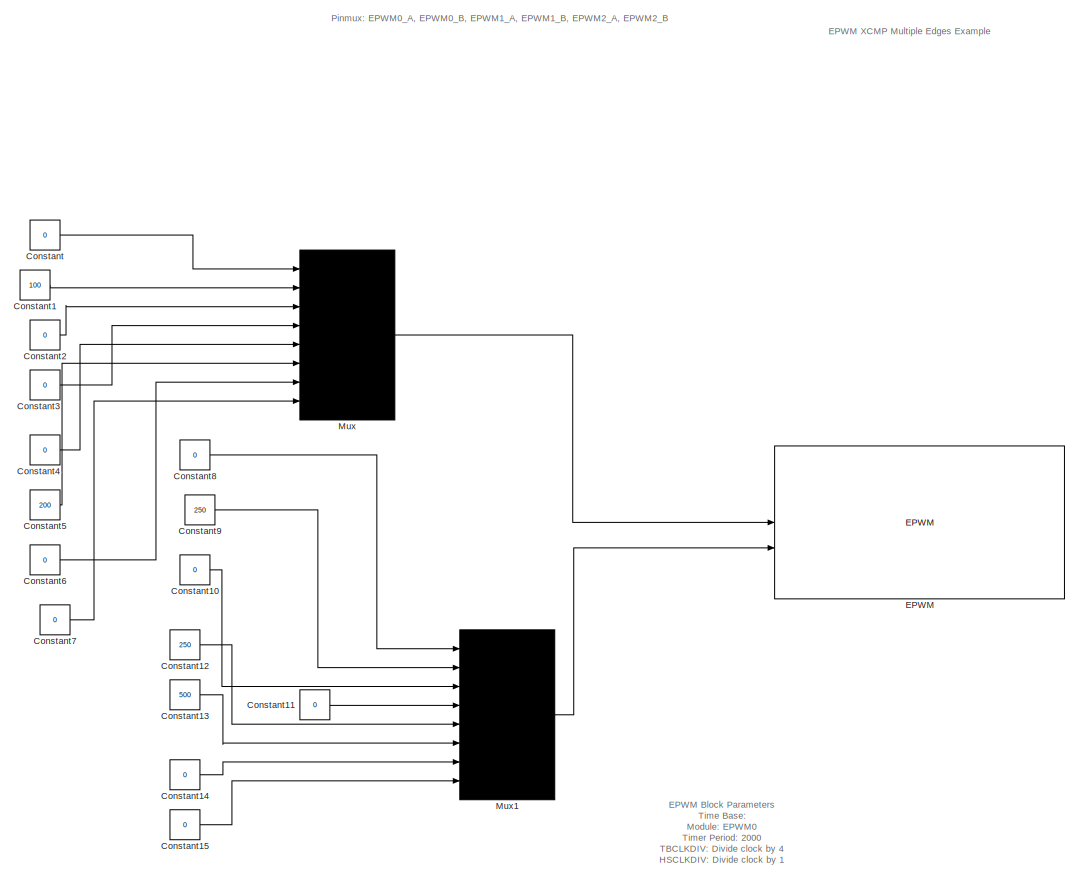
[diagram: root canvas - part 1/3, center side, full height]
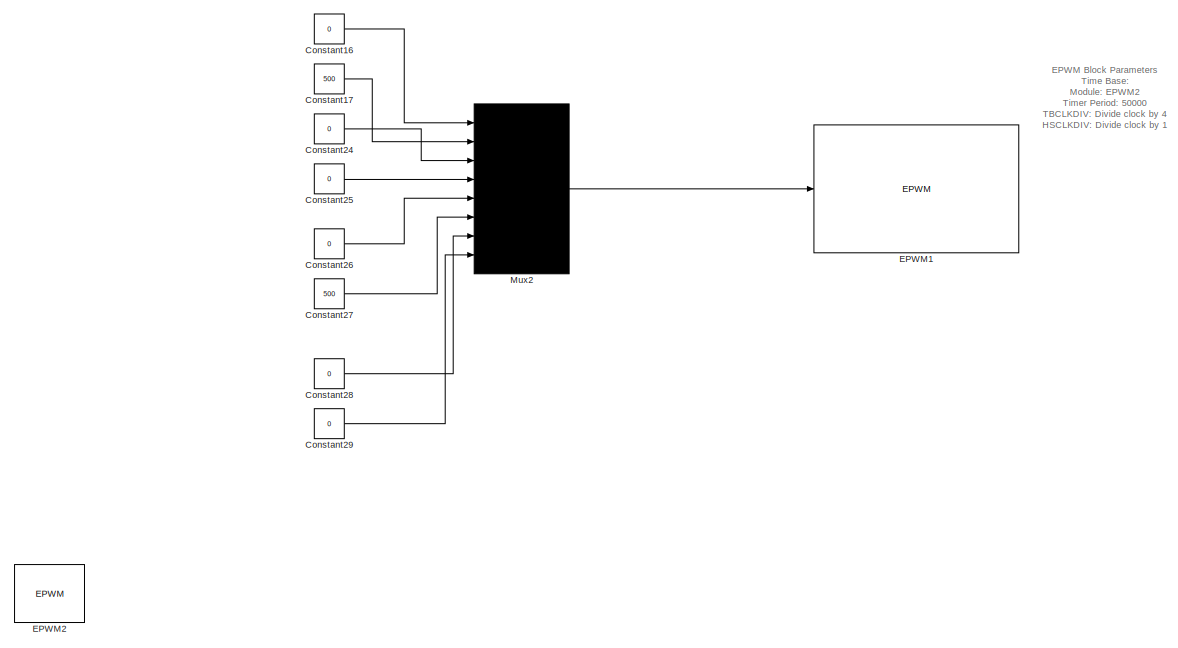
[diagram: root canvas - part 2/3, middle right region]
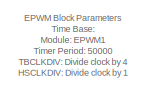
[diagram: root canvas - part 3/3, middle left region]
MODEL slx_47c0617c7b79
KIND model
CONFIG AbsTol = auto
CONFIG EnableMultiTasking = off
CONFIG FixedStep = auto
CONFIG MaxStep = auto
CONFIG MinStep = auto
CONFIG RelTol = 1e-3
CONFIG SampleTimeConstraint = Unconstrained
CONFIG SolverName = FixedStepAuto
CONFIG StartTime = 0.0
CONFIG StopTime = 10.0
BLOCK [Constant] Constant
  Value = 0
BLOCK [Constant] Constant1
  Value = 100
BLOCK [Constant] Constant10
  Value = 0
BLOCK [Constant] Constant11
  Value = 0
BLOCK [Constant] Constant12
  Value = 250
BLOCK [Constant] Constant13
  Value = 500
BLOCK [Constant] Constant14
  Value = 0
BLOCK [Constant] Constant15
  Value = 0
BLOCK [Constant] Constant16
  Value = 0
BLOCK [Constant] Constant17
  Value = 500
BLOCK [Constant] Constant2
  Value = 0
BLOCK [Constant] Constant24
  Value = 0
BLOCK [Constant] Constant25
  Value = 0
BLOCK [Constant] Constant26
  Value = 0
BLOCK [Constant] Constant27
  Value = 500
BLOCK [Constant] Constant28
  Value = 0
BLOCK [Constant] Constant29
  Value = 0
BLOCK [Constant] Constant3
  Value = 0
BLOCK [Constant] Constant4
  Value = 0
BLOCK [Constant] Constant5
  Value = 200
BLOCK [Constant] Constant6
  Value = 0
BLOCK [Constant] Constant7
  Value = 0
BLOCK [Constant] Constant8
  Value = 0
BLOCK [Constant] Constant9
  Value = 250
BLOCK [Reference] EPWM  REF=peripheral_library_blocks_am261x/EPWM
  SourceBlock = peripheral_library_blocks_am261x/EPWM
  SourceType = EPWM_AM261X
BLOCK [Reference] EPWM1  REF=peripheral_library_blocks_am261x/EPWM
  SourceBlock = peripheral_library_blocks_am261x/EPWM
  SourceType = EPWM_AM261X
BLOCK [Reference] EPWM2  REF=peripheral_library_blocks_am261x/EPWM
  SourceBlock = peripheral_library_blocks_am261x/EPWM
  SourceType = EPWM_AM261X
BLOCK [Mux] Mux
  DisplayOption = bar
  Inputs = 8
BLOCK [Mux] Mux1
  DisplayOption = bar
  Inputs = 8
BLOCK [Mux] Mux2
  DisplayOption = bar
  Inputs = 8
ANNOTATION (root): EPWM Block Parameters Time Base: Module: EPWM0 Timer Period: 2000 TBCLKDIV: Divide clock by 4 HSCLKDIV: Divide clock by 1 Counter Mode: Up Count Counter Compare: CMPA Value: 1000 CMPB Value: 1000 Action Qualifier: EPWMXA action when cntr is zero: Set output pins to high EPWMXA Action when cntr is CMPA up-count: Set output pins to low EPWMXB action when cntr is zero: Set output pins to high EPWMXB ...<+60ch>
ANNOTATION (root): EPWM Block Parameters Time Base: Module: EPWM1 Timer Period: 50000 TBCLKDIV: Divide clock by 4 HSCLKDIV: Divide clock by 1 XCMP: Enable EPWM XCMP Mode: True Alloate XCMP registers to CMPA: XCMP1-XCMP4 Allocate XCMP registers to CMPB: XCMP5-XCMP8 XCMP2 Active: 500 XCMP6 Active: 500 XCMP2 Shadow1 Initial Value: 100 XCMP6 Shadow1 Initial Value: 200 XCMP2 Shadow3 Initial Value: 250 XCMP5 Shadow3 Initi...<+163ch>
ANNOTATION (root): EPWM Block Parameters Time Base: Module: EPWM2 Timer Period: 50000 TBCLKDIV: Divide clock by 4 HSCLKDIV: Divide clock by 1 XCMP: Enable EPWM XCMP Mode: True Alloate XCMP registers to CMPA: XCMP1-XCMP4 Allocate XCMP registers to CMPB: XCMP5-XCMP8 XCMP2 Active: 500 XCMP6 Active: 500 XTBPRD Active: 50000 Load Mode: Load Once Shadow level: Shadow level zero
ANNOTATION (root): Pinmux: EPWM0_A, EPWM0_B, EPWM1_A, EPWM1_B, EPWM2_A, EPWM2_B
ANNOTATION (root): EPWM XCMP Multiple Edges Example
LINE Constant10:1 -> Mux1:3
LINE Constant11:1 -> Mux1:4
LINE Constant12:1 -> Mux1:5
LINE Constant13:1 -> Mux1:6
LINE Constant14:1 -> Mux1:7
LINE Constant15:1 -> Mux1:8
LINE Constant16:1 -> Mux2:1
LINE Constant17:1 -> Mux2:2
LINE Constant1:1 -> Mux:2
LINE Constant24:1 -> Mux2:3
LINE Constant25:1 -> Mux2:4
LINE Constant26:1 -> Mux2:5
LINE Constant27:1 -> Mux2:6
LINE Constant28:1 -> Mux2:7
LINE Constant29:1 -> Mux2:8
LINE Constant2:1 -> Mux:3
LINE Constant3:1 -> Mux:4
LINE Constant4:1 -> Mux:5
LINE Constant5:1 -> Mux:6
LINE Constant6:1 -> Mux:7
LINE Constant7:1 -> Mux:8
LINE Constant8:1 -> Mux1:1
LINE Constant9:1 -> Mux1:2
LINE Constant:1 -> Mux:1
LINE Mux1:1 -> EPWM:2
LINE Mux2:1 -> EPWM1:1
LINE Mux:1 -> EPWM:1
